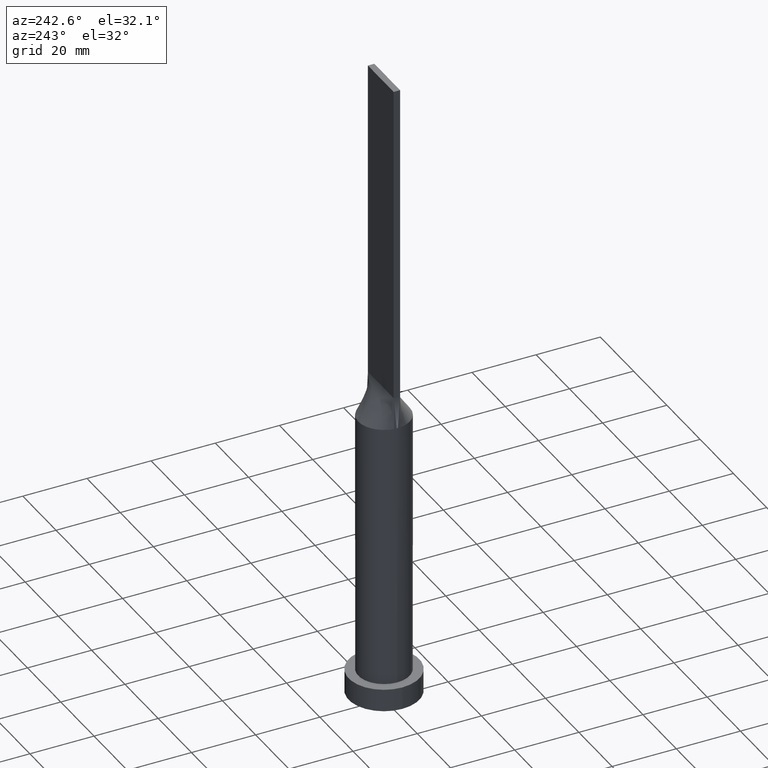
[diagram: clean part render]
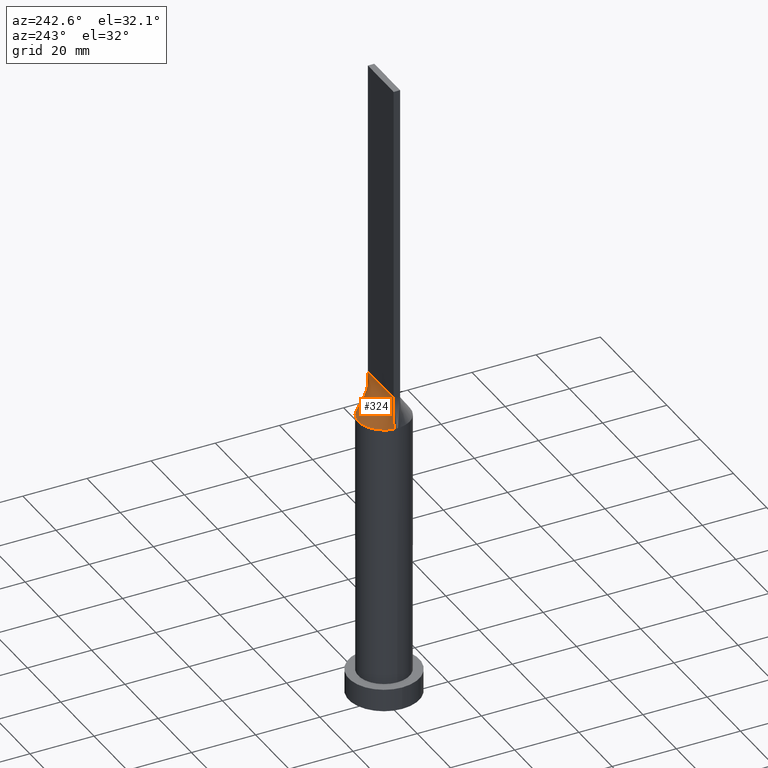
[diagram: same view with one face highlighted and labeled with its STEP entity id]
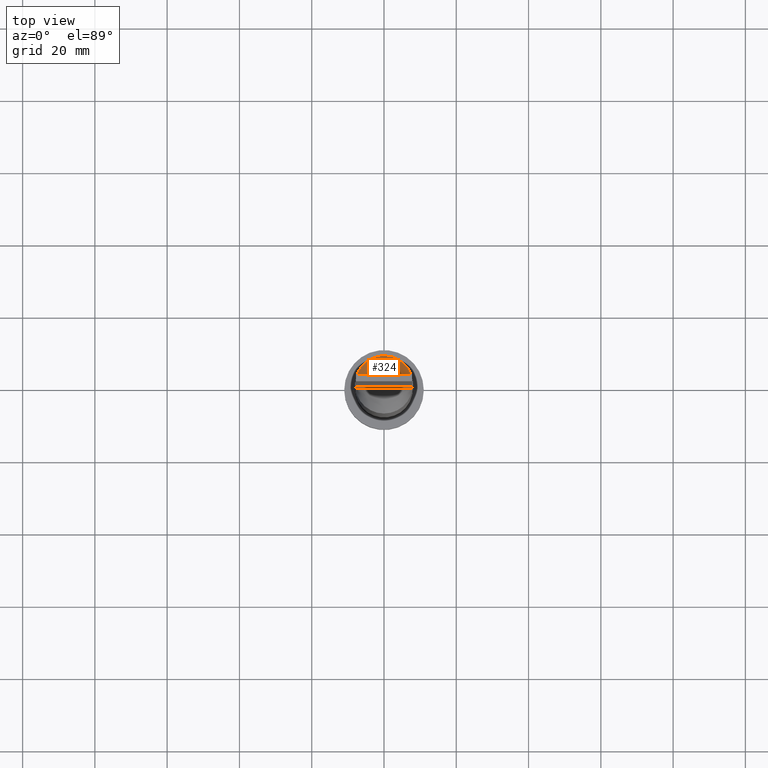
[diagram: same view with one face highlighted and labeled with its STEP entity id]
A machine part, auxiliary view. The second image highlights one B-rep face of the part: STEP entity #324.
A second angle (top view) of the same face is appended — the face is thin or edge-on in the first view.
In plain terms, the highlighted face is a freeform B-spline surface patch.
Its self-contained STEP definition (entity closure, byte-faithful):
#1 = VERTEX_POINT ( 'NONE', #596 ) ;
#8 = CARTESIAN_POINT ( 'NONE',  ( 7.104166666666666963, 1.000000000000000000, 100.0000000000000000 ) ) ;
#30 = B_SPLINE_CURVE_WITH_KNOTS ( 'NONE', 3,
 ( #274, #121, #570, #558, #236, #229, #616, #111, #173, #608, #334, #280, #619, #428, #322, #382, #168, #371, #244, #287, #345, #586, #142, #180, #79, #579, #347, #85, #296, #623 ),
 .UNSPECIFIED., .F., .F.,
 ( 4, 2, 2, 2, 2, 2, 2, 2, 2, 2, 2, 2, 2, 2, 4 ),
 ( 0.000000000000000000, 0.1250000000000000000, 0.1875000000000000000, 0.2500000000000000000, 0.3125000000000000000, 0.3750000000000000000, 0.4375000000000000000, 0.5000000000000000000, 0.5625000000000000000, 0.6250000000000000000, 0.6875000000000000000, 0.7500000000000000000, 0.8125000000000000000, 0.8750000000000000000, 1.000000000000000000 ),
 .UNSPECIFIED. ) ;
#33 = CARTESIAN_POINT ( 'NONE',  ( -2.847317194822260422, 7.497028652483947120, 90.00000000000004263 ) ) ;
#35 = CARTESIAN_POINT ( 'NONE',  ( -4.520833333333333925, 1.000000000000000000, 100.0000000000000284 ) ) ;
#38 = CARTESIAN_POINT ( 'NONE',  ( 1.614583333333333481, 1.000000000000000000, 100.0000000000000000 ) ) ;
#41 = CARTESIAN_POINT ( 'NONE',  ( -4.333237558274722900, 6.745559271922134670, 90.00000000000002842 ) ) ;
#44 = DIRECTION ( 'NONE',  ( -1.000000000000000000, -0.000000000000000000, -0.000000000000000000 ) ) ;
#50 = CARTESIAN_POINT ( 'NONE',  ( -7.750000000000000000, 1.000000000000000000, 100.0000000000000000 ) ) ;
#54 = CARTESIAN_POINT ( 'NONE',  ( 5.166666666666666963, 1.000000000000000000, 100.0000000000000000 ) ) ;
#64 = CARTESIAN_POINT ( 'NONE',  ( -7.934264564332944580, 1.023776086464161406, 90.00000000000001421 ) ) ;
#71 = VERTEX_POINT ( 'NONE', #380 ) ;
#79 = CARTESIAN_POINT ( 'NONE',  ( -6.511821874825407974, 4.668925682402791821, 90.00000000000001421 ) ) ;
#83 = CARTESIAN_POINT ( 'NONE',  ( 6.511821874825409751, 4.668925682402791821, 90.00000000000001421 ) ) ;
#84 = CARTESIAN_POINT ( 'NONE',  ( -3.862537548001455878, 7.028047916340264045, 90.00000000000004263 ) ) ;
#85 = CARTESIAN_POINT ( 'NONE',  ( -7.675166908885236339, 2.399868494543667907, 90.00000000000002842 ) ) ;
#88 = CARTESIAN_POINT ( 'NONE',  ( -5.489583333333335702, 1.000000000000000000, 100.0000000000000284 ) ) ;
#111 = CARTESIAN_POINT ( 'NONE',  ( 5.562660223239392465, 5.770452176164421410, 90.00000000000001421 ) ) ;
#121 = CARTESIAN_POINT ( 'NONE',  ( 7.849610172922079521, 1.679519592204998801, 90.00000000000001421 ) ) ;
#135 = CARTESIAN_POINT ( 'NONE',  ( -7.934222933072200945, 1.023770701041572195, 90.00000000000001421 ) ) ;
#139 = CARTESIAN_POINT ( 'NONE',  ( -2.260416666666666519, 1.000000000000000000, 100.0000000000000142 ) ) ;
#142 = CARTESIAN_POINT ( 'NONE',  ( -5.562660223239390689, 5.770452176164420521, 90.00000000000001421 ) ) ;
#143 = CARTESIAN_POINT ( 'NONE',  ( -5.183259239191613688, 6.116644610143057825, 90.00000000000002842 ) ) ;
#145 = CARTESIAN_POINT ( 'NONE',  ( -1.291666666666666741, 1.000000000000000000, 100.0000000000000000 ) ) ;
#150 = VECTOR ( 'NONE', #478, 1000.000000000000114 ) ;
#155 = CARTESIAN_POINT ( 'NONE',  ( 7.849610172922079521, 1.679519592204998801, 90.00000000000001421 ) ) ;
#156 = VERTEX_POINT ( 'NONE', #455 ) ;
#157 = CARTESIAN_POINT ( 'NONE',  ( 7.675166908885234562, 2.399868494543665243, 90.00000000000000000 ) ) ;
#168 = CARTESIAN_POINT ( 'NONE',  ( -1.172177046651856402, 7.934824862069282503, 90.00000000000004263 ) ) ;
#173 = CARTESIAN_POINT ( 'NONE',  ( 5.183259239191615464, 6.116644610143058713, 90.00000000000001421 ) ) ;
#180 = CARTESIAN_POINT ( 'NONE',  ( -6.226863775955933100, 5.046530946333157353, 90.00000000000002842 ) ) ;
#185 = CARTESIAN_POINT ( 'NONE',  ( 2.260416666666666519, 1.000000000000000000, 100.0000000000000000 ) ) ;
#187 = VECTOR ( 'NONE', #265, 1000.000000000000114 ) ;
#188 = CARTESIAN_POINT ( 'NONE',  ( 1.291666666666666741, 1.000000000000000000, 100.0000000000000000 ) ) ;
#191 = CARTESIAN_POINT ( 'NONE',  ( 6.226863775955932212, 5.046530946333158241, 90.00000000000002842 ) ) ;
#194 = CARTESIAN_POINT ( 'NONE',  ( -7.842111466536100473, 1.011885350520786098, 95.00000000000000000 ) ) ;
#195 = CARTESIAN_POINT ( 'NONE',  ( -2.583333333333333481, 1.000000000000000000, 100.0000000000000284 ) ) ;
#214 = CARTESIAN_POINT ( 'NONE',  ( -7.750000000000000000, 1.000000000000000000, 100.0000000000000000 ) ) ;
#229 = CARTESIAN_POINT ( 'NONE',  ( 6.511821874825409751, 4.668925682402791821, 90.00000000000001421 ) ) ;
#236 = CARTESIAN_POINT ( 'NONE',  ( 6.994548530637815453, 3.908833842696238570, 90.00000000000001421 ) ) ;
#241 = EDGE_CURVE ( 'NONE', #446, #1, #487, .T. ) ;
#242 = CARTESIAN_POINT ( 'NONE',  ( -4.197916666666667851, 1.000000000000000000, 100.0000000000000284 ) ) ;
#244 = CARTESIAN_POINT ( 'NONE',  ( -2.847317194822260422, 7.497028652483947120, 90.00000000000004263 ) ) ;
#245 = CARTESIAN_POINT ( 'NONE',  ( 1.172177046651856624, 7.934824862069278950, 90.00000000000004263 ) ) ;
#247 = EDGE_CURVE ( 'NONE', #71, #1, #557, .T. ) ;
#251 = EDGE_CURVE ( 'NONE', #156, #71, #591, .T. ) ;
#263 = B_SPLINE_SURFACE_WITH_KNOTS ( 'NONE', 3, 1, ( 
 ( #595, #355 ),
 ( #155, #8 ),
 ( #157, #403 ),
 ( #597, #357 ),
 ( #310, #54 ),
 ( #83, #436 ),
 ( #191, #531 ),
 ( #537, #442 ),
 ( #393, #298 ),
 ( #386, #632 ),
 ( #344, #185 ),
 ( #536, #38 ),
 ( #302, #188 ),
 ( #245, #628 ),
 ( #582, #638 ),
 ( #288, #479 ),
 ( #438, #445 ),
 ( #588, #145 ),
 ( #33, #532 ),
 ( #84, #139 ),
 ( #41, #195 ),
 ( #143, #349 ),
 ( #389, #585 ),
 ( #346, #242 ),
 ( #292, #35 ),
 ( #293, #482 ),
 ( #540, #88 ),
 ( #488, #484 ),
 ( #641, #580 ),
 ( #135, #50 ) ),
 .UNSPECIFIED., .F., .F., .F.,
 ( 4, 2, 2, 2, 2, 2, 2, 2, 2, 2, 2, 2, 2, 2, 4 ),
 ( 2, 2 ),
 ( 0.000000000000000000, 0.1250000000000000000, 0.1875000000000000000, 0.2500000000000000000, 0.3125000000000000000, 0.3750000000000000000, 0.4375000000000000000, 0.5000000000000000000, 0.5625000000000000000, 0.6250000000000000000, 0.6875000000000000000, 0.7500000000000000000, 0.8125000000000000000, 0.8750000000000000000, 1.000000000000000000 ),
 ( 0.000000000000000000, 1.000000000000000000 ),
 .UNSPECIFIED. ) ;
#265 = DIRECTION ( 'NONE',  ( -0.01841911599500831165, -0.002376660128388051550, 0.9998275289531671772 ) ) ;
#274 = CARTESIAN_POINT ( 'NONE',  ( 7.934252830235720033, 1.023774570959714802, 90.00000000000001421 ) ) ;
#280 = CARTESIAN_POINT ( 'NONE',  ( 2.847317194822259534, 7.497028652483948008, 90.00000000000004263 ) ) ;
#287 = CARTESIAN_POINT ( 'NONE',  ( -3.862537548001455878, 7.028047916340264045, 90.00000000000004263 ) ) ;
#288 = CARTESIAN_POINT ( 'NONE',  ( -0.5861720261543129640, 7.999999999999998224, 90.00000000000001421 ) ) ;
#292 = CARTESIAN_POINT ( 'NONE',  ( -6.511821874825407974, 4.668925682402791821, 90.00000000000001421 ) ) ;
#293 = CARTESIAN_POINT ( 'NONE',  ( -6.994548530637814565, 3.908833842696238570, 90.00000000000002842 ) ) ;
#296 = CARTESIAN_POINT ( 'NONE',  ( -7.849610172922081297, 1.679519592204999023, 90.00000000000000000 ) ) ;
#298 = CARTESIAN_POINT ( 'NONE',  ( 3.229166666666666519, 1.000000000000000000, 100.0000000000000000 ) ) ;
#302 = CARTESIAN_POINT ( 'NONE',  ( 2.302877821226935406, 7.683241396761612663, 90.00000000000004263 ) ) ;
#310 = CARTESIAN_POINT ( 'NONE',  ( 6.994548530637815453, 3.908833842696238570, 90.00000000000001421 ) ) ;
#322 = CARTESIAN_POINT ( 'NONE',  ( 0.5861720261543130750, 7.999999999999998224, 89.99999999999998579 ) ) ;
#324 = ADVANCED_FACE ( 'NONE', ( #397 ), #263, .T. ) ;
#334 = CARTESIAN_POINT ( 'NONE',  ( 3.862537548001455878, 7.028047916340264933, 90.00000000000002842 ) ) ;
#344 = CARTESIAN_POINT ( 'NONE',  ( 3.862537548001455878, 7.028047916340264933, 90.00000000000002842 ) ) ;
#345 = CARTESIAN_POINT ( 'NONE',  ( -4.333237558274722900, 6.745559271922134670, 90.00000000000002842 ) ) ;
#346 = CARTESIAN_POINT ( 'NONE',  ( -6.226863775955933100, 5.046530946333157353, 90.00000000000002842 ) ) ;
#347 = CARTESIAN_POINT ( 'NONE',  ( -7.192469010134845853, 3.526369025759696019, 90.00000000000002842 ) ) ;
#349 = CARTESIAN_POINT ( 'NONE',  ( -3.229166666666666519, 1.000000000000000000, 100.0000000000000284 ) ) ;
#355 = CARTESIAN_POINT ( 'NONE',  ( 7.750000000000000000, 1.000000000000000000, 100.0000000000000000 ) ) ;
#357 = CARTESIAN_POINT ( 'NONE',  ( 5.489583333333332149, 1.000000000000000000, 100.0000000000000000 ) ) ;
#371 = CARTESIAN_POINT ( 'NONE',  ( -2.302877821226935851, 7.683241396761610886, 90.00000000000004263 ) ) ;
#380 = CARTESIAN_POINT ( 'NONE',  ( 7.750000000000000000, 1.000000000000000000, 100.0000000000000000 ) ) ;
#382 = CARTESIAN_POINT ( 'NONE',  ( -0.5861720261543129640, 7.999999999999998224, 90.00000000000001421 ) ) ;
#386 = CARTESIAN_POINT ( 'NONE',  ( 4.333237558274722900, 6.745559271922132893, 89.99999999999998579 ) ) ;
#389 = CARTESIAN_POINT ( 'NONE',  ( -5.562660223239390689, 5.770452176164420521, 90.00000000000001421 ) ) ;
#390 = ORIENTED_EDGE ( 'NONE', *, *, #241, .T. ) ;
#393 = CARTESIAN_POINT ( 'NONE',  ( 5.183259239191615464, 6.116644610143058713, 90.00000000000001421 ) ) ;
#397 = FACE_OUTER_BOUND ( 'NONE', #486, .T. ) ;
#403 = CARTESIAN_POINT ( 'NONE',  ( 6.458333333333333037, 1.000000000000000000, 100.0000000000000000 ) ) ;
#428 = CARTESIAN_POINT ( 'NONE',  ( 1.172177046651856624, 7.934824862069278950, 90.00000000000004263 ) ) ;
#436 = CARTESIAN_POINT ( 'NONE',  ( 4.520833333333333037, 1.000000000000000000, 100.0000000000000000 ) ) ;
#438 = CARTESIAN_POINT ( 'NONE',  ( -1.172177046651856402, 7.934824862069282503, 90.00000000000004263 ) ) ;
#442 = CARTESIAN_POINT ( 'NONE',  ( 3.552083333333333481, 1.000000000000000000, 100.0000000000000142 ) ) ;
#445 = CARTESIAN_POINT ( 'NONE',  ( -0.6458333333333333703, 1.000000000000000000, 100.0000000000000000 ) ) ;
#446 = VERTEX_POINT ( 'NONE', #64 ) ;
#455 = CARTESIAN_POINT ( 'NONE',  ( 7.934252830235720033, 1.023774570959714802, 90.00000000000001421 ) ) ;
#478 = DIRECTION ( 'NONE',  ( 0.01841911599500831165, -0.002376660128387965247, 0.9998275289531671772 ) ) ;
#479 = CARTESIAN_POINT ( 'NONE',  ( -0.3229166666666667407, 1.000000000000000000, 100.0000000000000000 ) ) ;
#482 = CARTESIAN_POINT ( 'NONE',  ( -5.166666666666668739, 1.000000000000000000, 100.0000000000000284 ) ) ;
#484 = CARTESIAN_POINT ( 'NONE',  ( -6.458333333333334814, 1.000000000000000000, 100.0000000000000284 ) ) ;
#486 = EDGE_LOOP ( 'NONE', ( #490, #390, #589, #618 ) ) ;
#487 = LINE ( 'NONE', #194, #150 ) ;
#488 = CARTESIAN_POINT ( 'NONE',  ( -7.675166908885236339, 2.399868494543667907, 90.00000000000002842 ) ) ;
#490 = ORIENTED_EDGE ( 'NONE', *, *, #630, .T. ) ;
#512 = VECTOR ( 'NONE', #44, 1000.000000000000000 ) ;
#531 = CARTESIAN_POINT ( 'NONE',  ( 4.197916666666666963, 1.000000000000000000, 100.0000000000000142 ) ) ;
#532 = CARTESIAN_POINT ( 'NONE',  ( -1.614583333333333259, 1.000000000000000000, 100.0000000000000142 ) ) ;
#536 = CARTESIAN_POINT ( 'NONE',  ( 2.847317194822259534, 7.497028652483948008, 90.00000000000004263 ) ) ;
#537 = CARTESIAN_POINT ( 'NONE',  ( 5.562660223239392465, 5.770452176164421410, 90.00000000000001421 ) ) ;
#540 = CARTESIAN_POINT ( 'NONE',  ( -7.192469010134845853, 3.526369025759696019, 90.00000000000002842 ) ) ;
#549 = CARTESIAN_POINT ( 'NONE',  ( 7.842111466536100473, 1.011885350520786542, 95.00000000000000000 ) ) ;
#557 = LINE ( 'NONE', #214, #512 ) ;
#558 = CARTESIAN_POINT ( 'NONE',  ( 7.192469010134847629, 3.526369025759696907, 90.00000000000004263 ) ) ;
#570 = CARTESIAN_POINT ( 'NONE',  ( 7.675166908885234562, 2.399868494543665243, 90.00000000000000000 ) ) ;
#579 = CARTESIAN_POINT ( 'NONE',  ( -6.994548530637814565, 3.908833842696238570, 90.00000000000002842 ) ) ;
#580 = CARTESIAN_POINT ( 'NONE',  ( -7.104166666666667851, 1.000000000000000000, 100.0000000000000000 ) ) ;
#582 = CARTESIAN_POINT ( 'NONE',  ( 0.5861720261543130750, 7.999999999999998224, 89.99999999999998579 ) ) ;
#585 = CARTESIAN_POINT ( 'NONE',  ( -3.552083333333333481, 1.000000000000000000, 100.0000000000000284 ) ) ;
#586 = CARTESIAN_POINT ( 'NONE',  ( -5.183259239191613688, 6.116644610143057825, 90.00000000000002842 ) ) ;
#588 = CARTESIAN_POINT ( 'NONE',  ( -2.302877821226935851, 7.683241396761610886, 90.00000000000004263 ) ) ;
#589 = ORIENTED_EDGE ( 'NONE', *, *, #247, .F. ) ;
#591 = LINE ( 'NONE', #549, #187 ) ;
#595 = CARTESIAN_POINT ( 'NONE',  ( 7.934222933072200945, 1.023770701041573972, 90.00000000000001421 ) ) ;
#596 = CARTESIAN_POINT ( 'NONE',  ( -7.750000000000000000, 1.000000000000000000, 100.0000000000000000 ) ) ;
#597 = CARTESIAN_POINT ( 'NONE',  ( 7.192469010134847629, 3.526369025759696907, 90.00000000000004263 ) ) ;
#608 = CARTESIAN_POINT ( 'NONE',  ( 4.333237558274722900, 6.745559271922132893, 89.99999999999998579 ) ) ;
#616 = CARTESIAN_POINT ( 'NONE',  ( 6.226863775955932212, 5.046530946333158241, 90.00000000000002842 ) ) ;
#618 = ORIENTED_EDGE ( 'NONE', *, *, #251, .F. ) ;
#619 = CARTESIAN_POINT ( 'NONE',  ( 2.302877821226935406, 7.683241396761612663, 90.00000000000004263 ) ) ;
#623 = CARTESIAN_POINT ( 'NONE',  ( -7.934264564332944580, 1.023776086464161406, 90.00000000000001421 ) ) ;
#628 = CARTESIAN_POINT ( 'NONE',  ( 0.6458333333333333703, 1.000000000000000000, 100.0000000000000000 ) ) ;
#630 = EDGE_CURVE ( 'NONE', #156, #446, #30, .T. ) ;
#632 = CARTESIAN_POINT ( 'NONE',  ( 2.583333333333333481, 1.000000000000000000, 100.0000000000000000 ) ) ;
#638 = CARTESIAN_POINT ( 'NONE',  ( 0.3229166666666666297, 1.000000000000000000, 100.0000000000000000 ) ) ;
#641 = CARTESIAN_POINT ( 'NONE',  ( -7.849610172922081297, 1.679519592204999023, 90.00000000000000000 ) ) ;